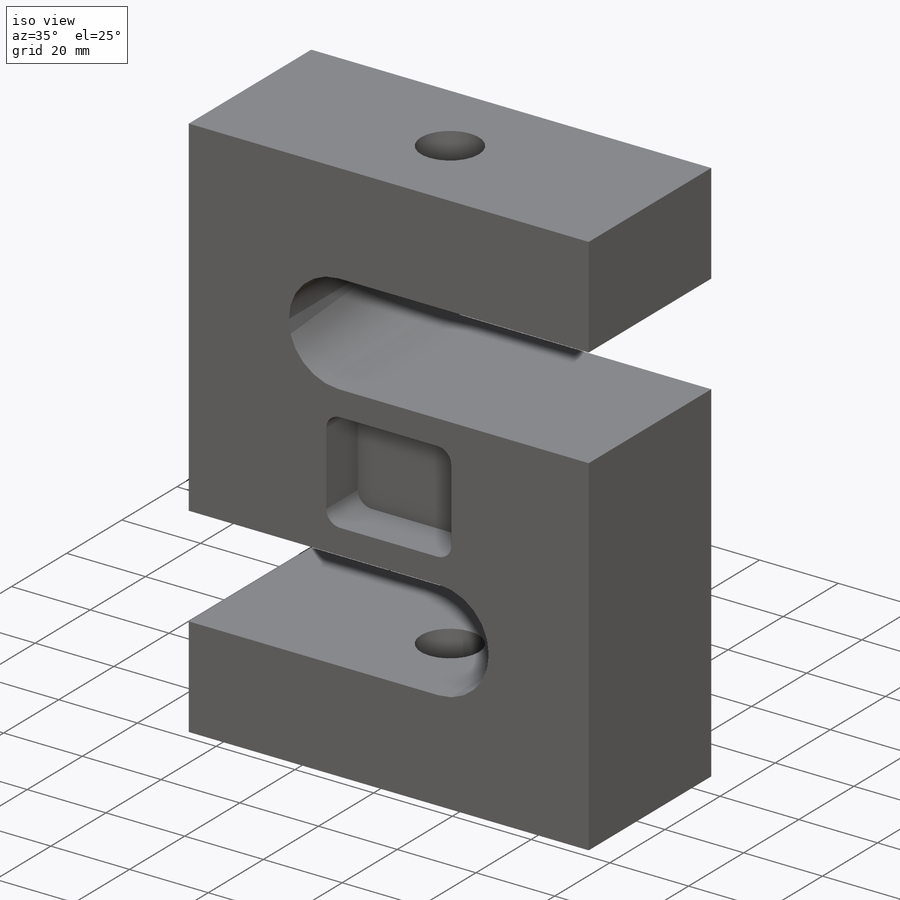
[diagram: iso view]
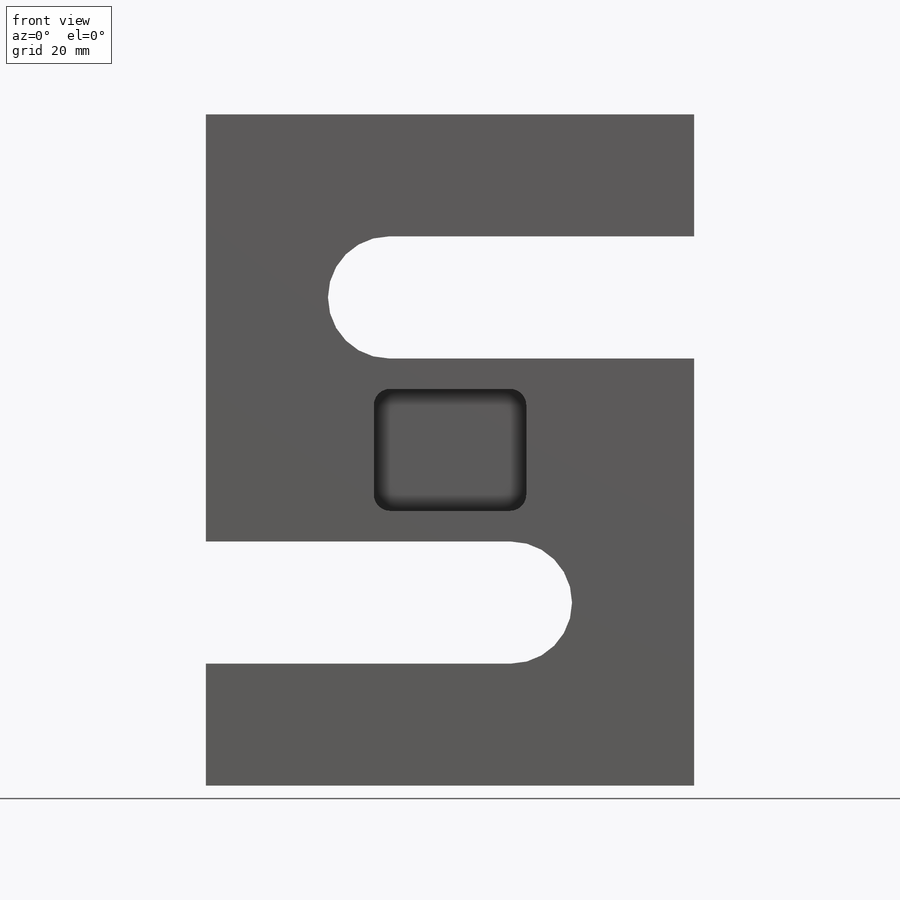
[diagram: front view]
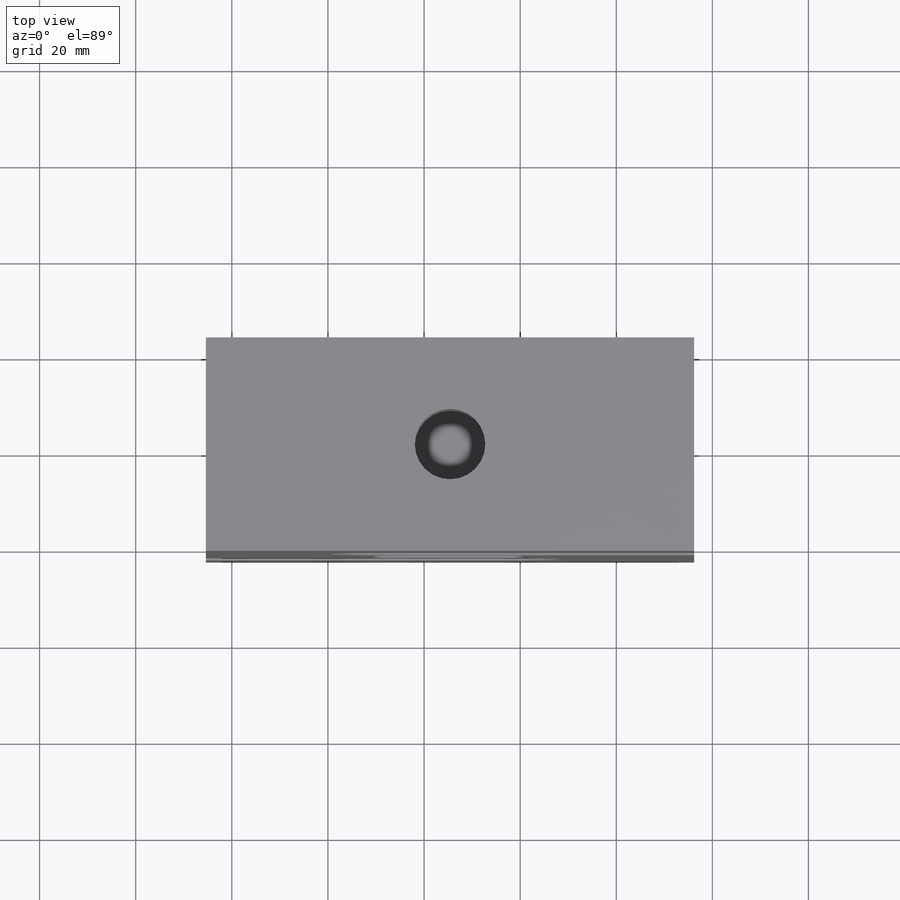
[diagram: top view]
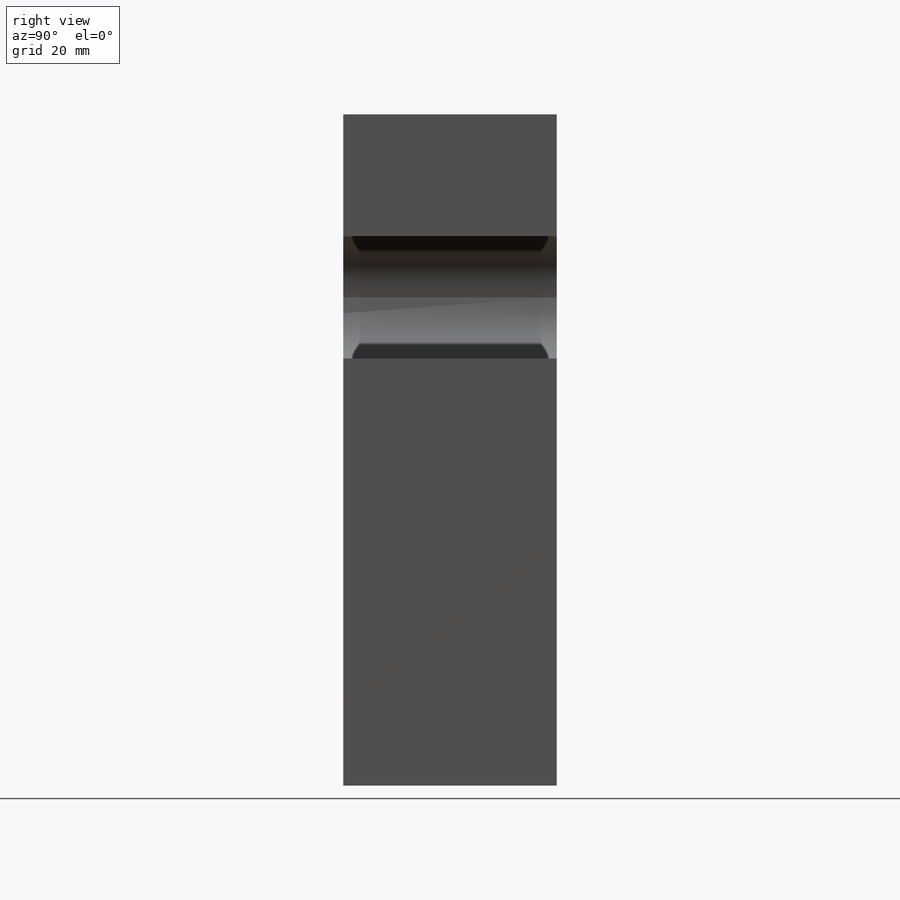
[diagram: right view]
SOLIDWORKS PART (.sldprt)
format: sldprt  version: not decoded by parser v0  size: 323,584 bytes
history: native  units: mm
features: sketch x8, fillet x2, hole x2, thread x2, material x1, extrude x1, cut_extrude x1, mirror x1 (+16 scaffold rows collapsed)
feature tree (34):
  scaffold x16  (default folders/planes/origin — collapsed)
  material  "Plain Carbon Steel"
  sketch  "Sketch1"  dims[c1.D1=38.1mm c1.D2=31.75mm c1.D3=25.4mm c1.D4=31.75mm c2.D1=101.6mm c2.D5=101.6mm c3.D1=88.9mm c3.D2=25.4mm c3.D3=~14.951178mm c3.D4=25.4mm c4.D1=139.7mm]
  extrude  "Boss-Extrude1"  Depth=44.45mm
  fillet  "Fillet1"  Radius=12.7mm
  sketch  "Sketch2"
  sketch  "Sketch3"
  hole  "5/8-18 Tapped Hole1"  Diameter=14.68374mm Depth=25.4mm
  sketch  "Sketch5"
  sketch  "Sketch4"  dims[hole-wizard template sketch: 59 standard entries collapsed; hole parameters kept: c18.Thru Tap Drill Dia.=~14.68374mm c18.Thru Tap Drill Depth=25.4mm]
  thread  "Hole Thread3"  Diameter=0mm  [1 undecoded]
  hole  "5/8-18 Tapped Hole2"  Diameter=14.68374mm Depth=25.4mm
  sketch  "Sketch7"
  sketch  "Sketch6"  dims[hole-wizard template sketch: 59 standard entries collapsed; hole parameters kept: c18.Thru Tap Drill Dia.=~14.68374mm c18.Thru Tap Drill Depth=25.4mm]
  thread  "Hole Thread4"  Diameter=0mm  [1 undecoded]
  sketch  "Sketch8"  dims[D1=25.4mm D2=31.75mm]
  cut_extrude  "Cut-Extrude1"  Depth=11.43mm
  fillet  "Fillet2"  Radius=3.429mm
  mirror  "Mirror1"
decode coverage: 12 of 17 modeling features carry decoded parameters
note: ~ marks probable driven/reference dimensions
note: 2 parameter values undecoded
note: suppression state not decoded; provenance and decode notes live in map.json
